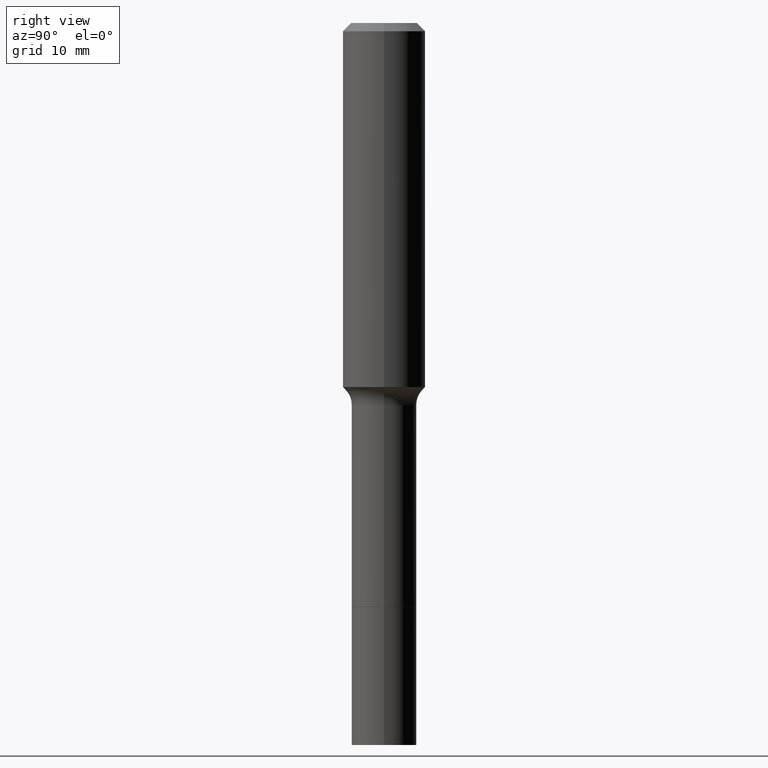
[diagram: clean part render]
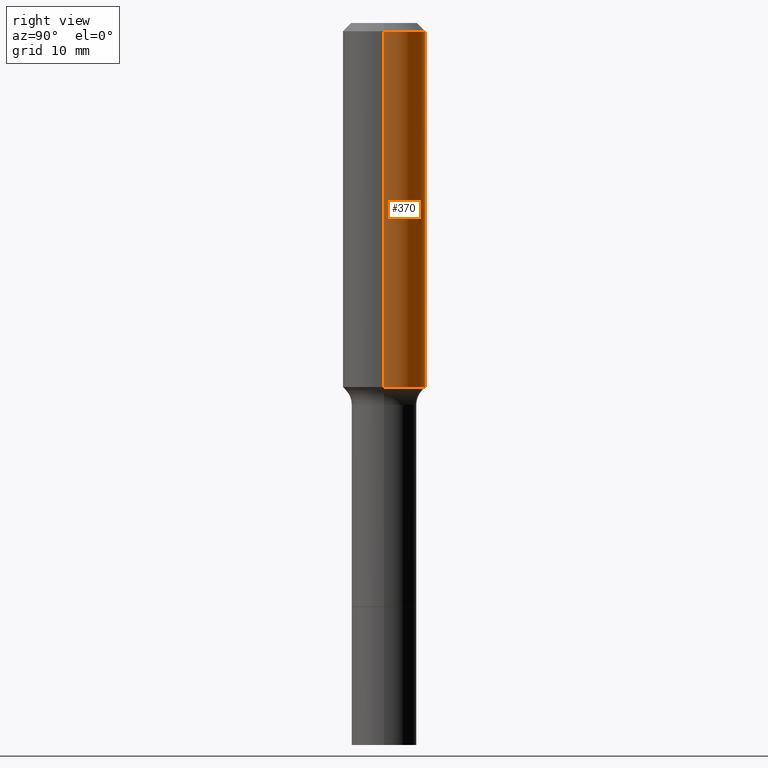
[diagram: same view with one face highlighted and labeled with its STEP entity id]
A machine part, right view. The second image highlights one B-rep face of the part: STEP entity #370.
In plain terms, the highlighted cylindrical surface (partial cylindrical patch) has radius 4.0005 mm, axis along (-0, 0, 1).
Its self-contained STEP definition (entity closure, byte-faithful):
#4 = AXIS2_PLACEMENT_3D ( 'NONE', #502, #145, #459 ) ;
#9 = EDGE_CURVE ( 'NONE', #458, #476, #311, .T. ) ;
#16 = CARTESIAN_POINT ( 'NONE',  ( 3.397887959612791457E-29, -4.851283472707574529E-15, -1.389462810164977302 ) ) ;
#24 = ORIENTED_EDGE ( 'NONE', *, *, #134, .T. ) ;
#34 = ORIENTED_EDGE ( 'NONE', *, *, #307, .F. ) ;
#46 = DIRECTION ( 'NONE',  ( 1.000000000000000000, -6.982962677686267499E-15, 0.000000000000000000 ) ) ;
#61 = VERTEX_POINT ( 'NONE', #387 ) ;
#68 = CYLINDRICAL_SURFACE ( 'NONE', #4, 0.1575000000000000844 ) ;
#87 = DIRECTION ( 'NONE',  ( -2.445468806185136597E-29, 3.491481338843145583E-15, 1.000000000000000000 ) ) ;
#90 = CARTESIAN_POINT ( 'NONE',  ( 7.703226739483230474E-31, -1.099816621735598031E-16, -0.03150000000000020839 ) ) ;
#110 = CARTESIAN_POINT ( 'NONE',  ( -0.1575000000000000844, 1.119104808822158392E-15, -7.747322767151481189E-30 ) ) ;
#114 = CIRCLE ( 'NONE', #350, 0.1575000000000000011 ) ;
#119 = LINE ( 'NONE', #110, #505 ) ;
#120 = DIRECTION ( 'NONE',  ( -2.445468806185136877E-29, 3.491481338843145188E-15, 1.000000000000000000 ) ) ;
#126 = VERTEX_POINT ( 'NONE', #440 ) ;
#134 = EDGE_CURVE ( 'NONE', #458, #126, #366, .T. ) ;
#139 = FACE_OUTER_BOUND ( 'NONE', #465, .T. ) ;
#145 = DIRECTION ( 'NONE',  ( -2.445468806185136597E-29, 3.491481338843145583E-15, 1.000000000000000000 ) ) ;
#157 = CARTESIAN_POINT ( 'NONE',  ( 0.1575000000000000011, -1.209798283909146741E-15, -0.03150000000000020839 ) ) ;
#193 = CARTESIAN_POINT ( 'NONE',  ( 0.1575000000000000844, -1.099816621735587677E-15, 7.679978421878603638E-30 ) ) ;
#215 = AXIS2_PLACEMENT_3D ( 'NONE', #16, #87, #46 ) ;
#230 = VECTOR ( 'NONE', #120, 39.37007874015748143 ) ;
#249 = DIRECTION ( 'NONE',  ( 1.000000000000000000, -6.982962677686265922E-15, 0.000000000000000000 ) ) ;
#307 = EDGE_CURVE ( 'NONE', #476, #61, #114, .T. ) ;
#310 = DIRECTION ( 'NONE',  ( -2.445468806185136877E-29, 3.491481338843145188E-15, 1.000000000000000000 ) ) ;
#311 = LINE ( 'NONE', #193, #230 ) ;
#350 = AXIS2_PLACEMENT_3D ( 'NONE', #90, #397, #249 ) ;
#366 = CIRCLE ( 'NONE', #215, 0.1575000000000001676 ) ;
#370 = ADVANCED_FACE ( 'NONE', ( #139 ), #68, .T. ) ;
#387 = CARTESIAN_POINT ( 'NONE',  ( -0.1575000000000000011, -1.361527758618408404E-15, -0.03150000000000020839 ) ) ;
#394 = ORIENTED_EDGE ( 'NONE', *, *, #508, .T. ) ;
#397 = DIRECTION ( 'NONE',  ( -2.445468806185136597E-29, 3.491481338843145583E-15, 1.000000000000000000 ) ) ;
#412 = ORIENTED_EDGE ( 'NONE', *, *, #9, .F. ) ;
#440 = CARTESIAN_POINT ( 'NONE',  ( -0.1575000000000001676, -3.732178663885415348E-15, -1.389462810164977302 ) ) ;
#458 = VERTEX_POINT ( 'NONE', #496 ) ;
#459 = DIRECTION ( 'NONE',  ( 1.000000000000000000, -6.982962677686267499E-15, 4.876176775795936353E-29 ) ) ;
#465 = EDGE_LOOP ( 'NONE', ( #24, #394, #34, #412 ) ) ;
#476 = VERTEX_POINT ( 'NONE', #157 ) ;
#496 = CARTESIAN_POINT ( 'NONE',  ( 0.1575000000000001676, -5.951100094443161221E-15, -1.389462810164977302 ) ) ;
#502 = CARTESIAN_POINT ( 'NONE',  ( 0.000000000000000000, 0.000000000000000000, 0.000000000000000000 ) ) ;
#505 = VECTOR ( 'NONE', #310, 39.37007874015748143 ) ;
#508 = EDGE_CURVE ( 'NONE', #126, #61, #119, .T. ) ;